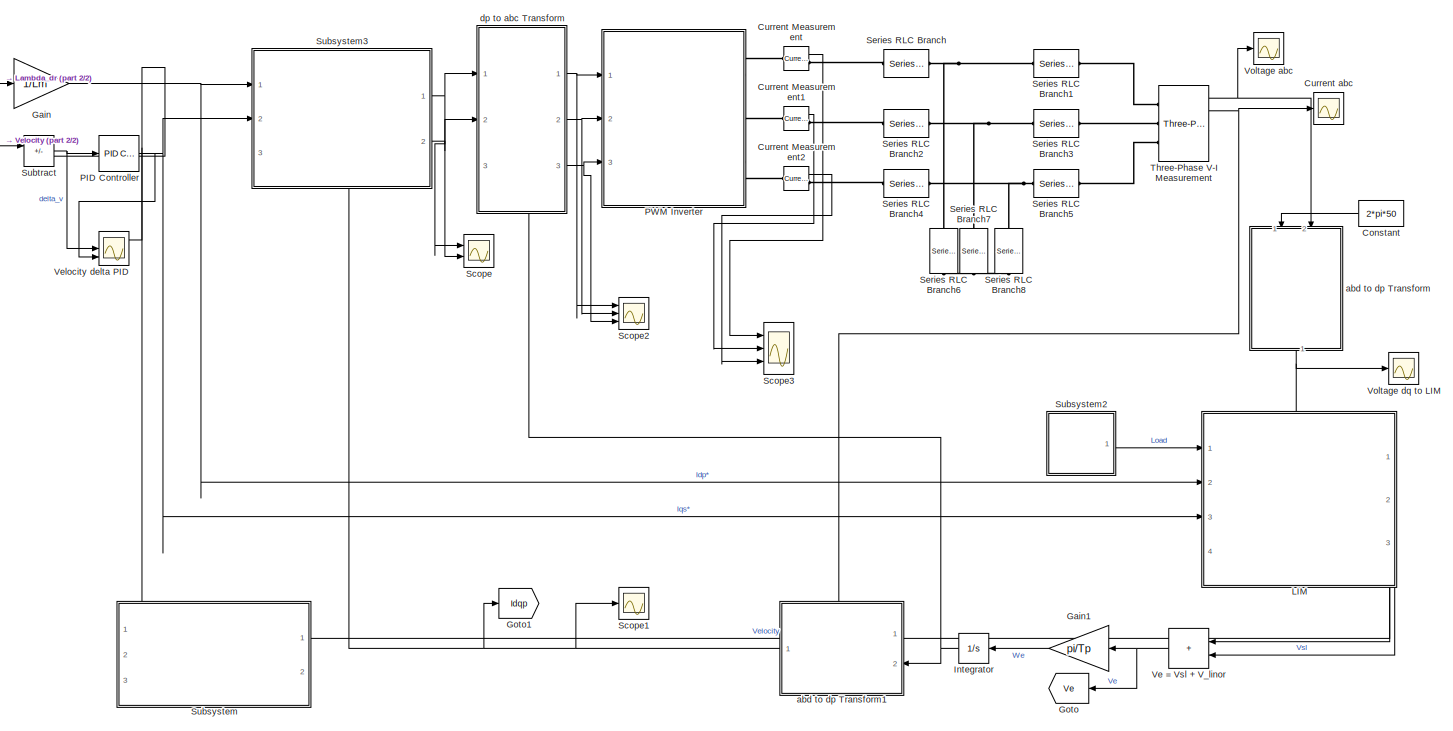
[diagram: root canvas - part 1/2, most of the canvas]
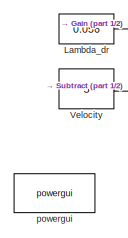
[diagram: root canvas - part 2/2, top left region]
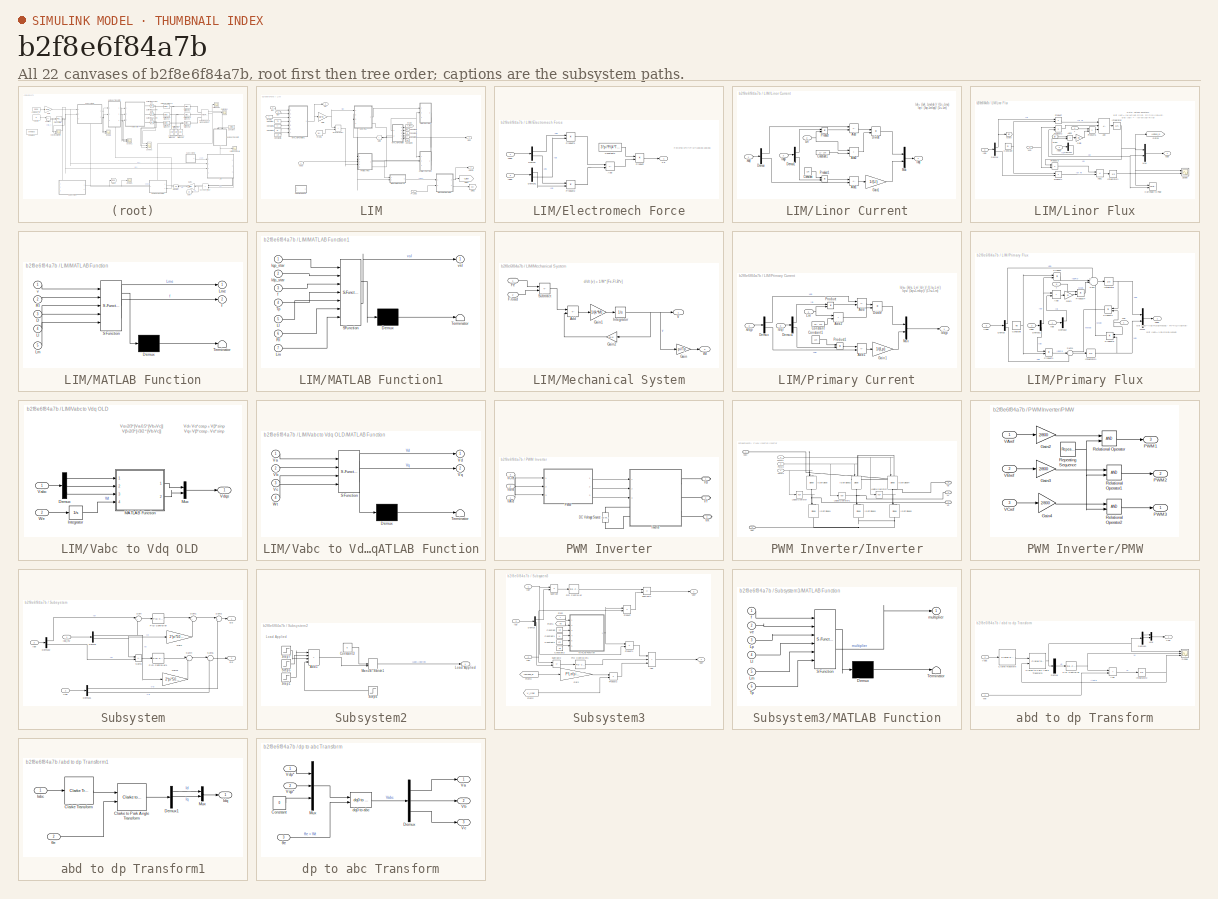
[diagram: thumbnail index - all 22 canvases of the model, root first then tree order]
MODEL slx_b2f8e6f84a7b
KIND model
CONFIG AbsTol = auto
CONFIG EnableMultiTasking = off
CONFIG FixedStep = auto
CONFIG MaxStep = auto
CONFIG MinStep = auto
CONFIG RelTol = 1e-3
CONFIG SampleTimeConstraint = Unconstrained
CONFIG SolverName = ode23t
CONFIG StartTime = 0.0
CONFIG StopTime = 2
BLOCK [Constant] Constant
  NameLocation = top
  Value = 2*pi*50
BLOCK [Reference] Current Measurement  REF=spsCurrentMeasurementLib/Current Measurement
  Ports = [0, 1, 0, 0, 0, 1, 1]
  SourceBlock = spsCurrentMeasurementLib/Current Measurement
  SourceProductBaseCode = PS
  SourceType = Current Measurement
  UserDataPersistent = on
BLOCK [Reference] Current Measurement1  REF=spsCurrentMeasurementLib/Current Measurement
  Ports = [0, 1, 0, 0, 0, 1, 1]
  SourceBlock = spsCurrentMeasurementLib/Current Measurement
  SourceProductBaseCode = PS
  SourceType = Current Measurement
  UserDataPersistent = on
BLOCK [Reference] Current Measurement2  REF=spsCurrentMeasurementLib/Current Measurement
  Ports = [0, 1, 0, 0, 0, 1, 1]
  SourceBlock = spsCurrentMeasurementLib/Current Measurement
  SourceProductBaseCode = PS
  SourceType = Current Measurement
  UserDataPersistent = on
BLOCK [Scope] Current abc
  Floating = off
  NumInputPorts = 1
  Ports = [1]
  ScopeSpecificationString = Simulink.scopes.TimeScopeBlockCfg('CurrentConfiguration', extmgr.ConfigurationSet(extmgr.Configuration('Core','General UI',true),extmgr.Configuration('Core','Source UI',true),extmgr.Configuration('Sources','WiredSimulink',true,'DataLoggingVariableName','ScopeData3'),extmgr.Configuration('Visuals','Time Domain',true,'SerializedDisplays',{struct('MinYLimReal','-1.00000','MaxYLimReal','1.00000','YLab...<+2809ch>
BLOCK [Gain] Gain
  Gain = 1/Lm
BLOCK [Gain] Gain1
  Gain = pi/Tp
BLOCK [Goto] Goto
  GotoTag = Ve
  NameLocation = top
  TagVisibility = global
BLOCK [Goto] Goto1
  GotoTag = Idqp
  TagVisibility = global
BLOCK [Integrator] Integrator
  NameLocation = top
  Ports = [1, 1]
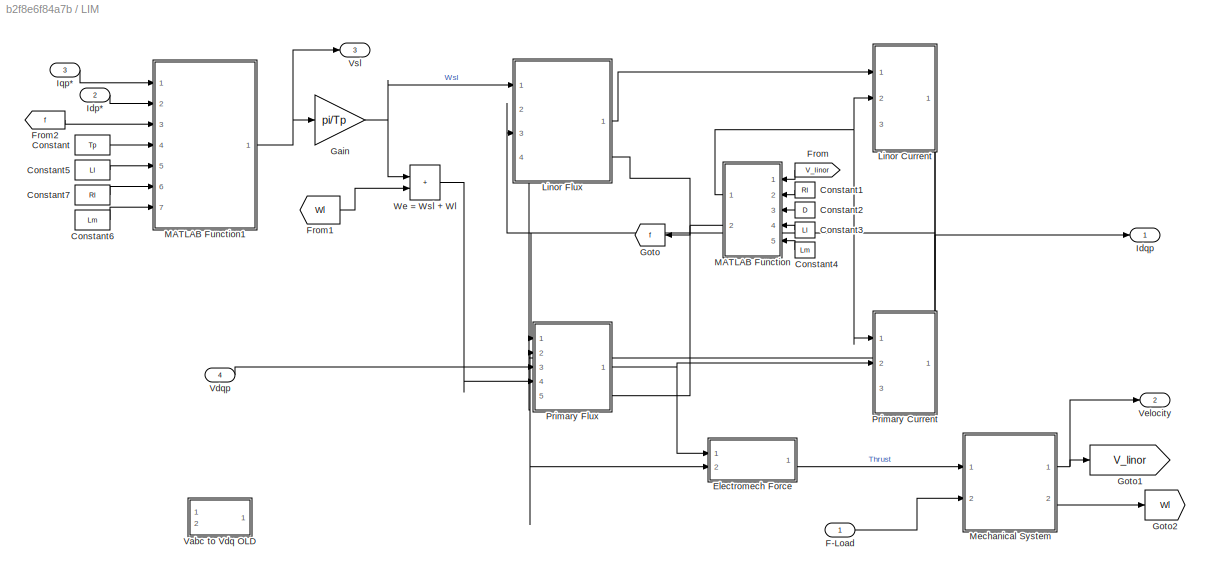
BLOCK [SubSystem] LIM
  PortSchema = {"entries":[{"content":{"sides":[{"content":{"connectorIds":["In1","In2","In3"]},"type":"ConnectorPlacement.EquallySpacedRectSide","uuid":"f7446374-ee35-46fe-93ed-7921b6b2af41"},{"content":{"connectorIds":["Out1"],"side":"RIGHT"},"type":"ConnectorPlacement.EquallySpacedRectSide","uuid":"9c6022f9-7a1a-4d7e-a6a7-0d40c632aa44"},{"content":{"connectorIds":["In4"],"side":"TOP"},"type":"ConnectorPlaceme...<+414ch>
  Ports = [4, 3]
  RequestExecContextInheritance = off
BLOCK [Constant] LIM/Constant
  Value = Tp
BLOCK [Constant] LIM/Constant1
  NameLocation = top
  Value = Rl
BLOCK [Constant] LIM/Constant2
  NameLocation = top
  Value = D
BLOCK [Constant] LIM/Constant3
  NameLocation = top
  Value = Ll
BLOCK [Constant] LIM/Constant4
  NameLocation = top
  Value = Lm
BLOCK [Constant] LIM/Constant5
  Value = Ll
BLOCK [Constant] LIM/Constant6
  Value = Lm
BLOCK [Constant] LIM/Constant7
  Value = Rl
BLOCK [SubSystem] LIM/Electromech Force
  Ports = [2, 1]
  RequestExecContextInheritance = off
BLOCK [Sum] LIM/Electromech Force/Add
  IconShape = rectangular
  Inputs = +-
  Ports = [2, 1]
BLOCK [Constant] LIM/Electromech Force/Constant2
  Value = 3*pi*P/(4*Tp)
BLOCK [Demux] LIM/Electromech Force/Demux
  Outputs = 2
  Ports = [1, 2]
BLOCK [Demux] LIM/Electromech Force/Demux1
  Outputs = 2
  Ports = [1, 2]
BLOCK [Outport] LIM/Electromech Force/Fe
BLOCK [Inport] LIM/Electromech Force/Idqp
  Port = 2
BLOCK [Product] LIM/Electromech Force/Product
  Ports = [2, 1]
BLOCK [Product] LIM/Electromech Force/Product1
  Ports = [2, 1]
BLOCK [Product] LIM/Electromech Force/Product2
  Ports = [2, 1]
BLOCK [Inport] LIM/Electromech Force/λdqp
BLOCK [Inport] LIM/F-Load
BLOCK [From] LIM/From
  GotoTag = V_linor
  NameLocation = top
  TagVisibility = global
BLOCK [From] LIM/From1
  GotoTag = Wl
BLOCK [From] LIM/From2
  GotoTag = f
  TagVisibility = global
BLOCK [Gain] LIM/Gain
  Gain = pi/Tp
BLOCK [Goto] LIM/Goto
  GotoTag = f
  NameLocation = top
  TagVisibility = global
BLOCK [Goto] LIM/Goto1
  GotoTag = V_linor
  TagVisibility = global
BLOCK [Goto] LIM/Goto2
  GotoTag = Wl
BLOCK [Inport] LIM/Idp*
  Port = 2
BLOCK [Outport] LIM/Idqp
BLOCK [Inport] LIM/Iqp*
  Port = 3
BLOCK [SubSystem] LIM/Linor Current
  NameLocation = top
  PortSchema = {"entries":[{"content":{"sides":[{"content":{"connectorIds":["In1","In2"]},"type":"ConnectorPlacement.EquallySpacedRectSide","uuid":"40d9865c-3cfa-44c1-93eb-682b1c6628f3"},{"content":{"connectorIds":[],"side":"RIGHT"},"type":"ConnectorPlacement.EquallySpacedRectSide","uuid":"35710d59-e170-4e3b-9d71-9b17ce19d5d9"},{"content":{"connectorIds":[],"side":"TOP"},"type":"ConnectorPlacement.EquallySpacedR...<+396ch>
  Ports = [3, 1]
  RequestExecContextInheritance = off
BLOCK [Sum] LIM/Linor Current/Add
  IconShape = rectangular
  Inputs = +-
  Ports = [2, 1]
BLOCK [Sum] LIM/Linor Current/Add1
  IconShape = rectangular
  Inputs = -+
  Ports = [2, 1]
BLOCK [Sum] LIM/Linor Current/Add2
  IconShape = rectangular
  Ports = [2, 1]
BLOCK [Constant] LIM/Linor Current/Constant
  Value = Lm
  VectorParams1D = off
BLOCK [Constant] LIM/Linor Current/Constant1
  Value = Ll - Lm
BLOCK [Demux] LIM/Linor Current/Demux
  Outputs = 2
  Ports = [1, 2]
BLOCK [Demux] LIM/Linor Current/Demux1
  Outputs = 2
  Ports = [1, 2]
BLOCK [Product] LIM/Linor Current/Divide
  Inputs = */
  Ports = [2, 1]
BLOCK [Gain] LIM/Linor Current/Gain1
  Gain = 1/(Ll)
BLOCK [Outport] LIM/Linor Current/Idql
BLOCK [Inport] LIM/Linor Current/Idqp
  Port = 3
BLOCK [Inport] LIM/Linor Current/Lm'
  Port = 2
BLOCK [Mux] LIM/Linor Current/Mux
  DisplayOption = bar
  Inputs = 2
  Ports = [2, 1]
BLOCK [Product] LIM/Linor Current/Product
  Ports = [2, 1]
BLOCK [Product] LIM/Linor Current/Product1
  Ports = [2, 1]
BLOCK [Inport] LIM/Linor Current/λdql
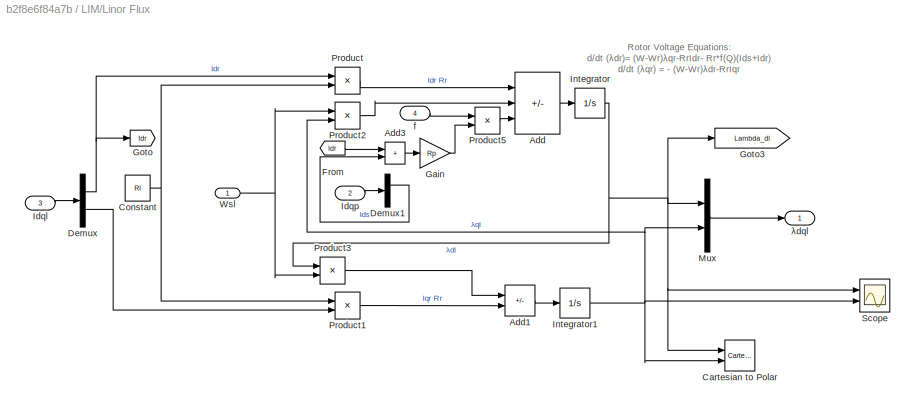
BLOCK [SubSystem] LIM/Linor Flux
  PortSchema = {"entries":[{"content":{"sides":[{"content":{"connectorIds":["In1","In2","In3"]},"type":"ConnectorPlacement.EquallySpacedRectSide","uuid":"b9a9f404-9b3b-4182-a50e-1bf7cef191e8"},{"content":{"connectorIds":["Out1","In4"],"side":"RIGHT"},"type":"ConnectorPlacement.EquallySpacedRectSide","uuid":"68159d79-7975-4fd0-98a3-7e35432781a2"},{"content":{"connectorIds":[],"side":"TOP"},"type":"ConnectorPlacem...<+402ch>
  Ports = [4, 1]
  RequestExecContextInheritance = off
BLOCK [Sum] LIM/Linor Flux/Add
  IconShape = rectangular
  Inputs = -+-
  Ports = [3, 1]
BLOCK [Sum] LIM/Linor Flux/Add1
  IconShape = rectangular
  Inputs = --
  Ports = [2, 1]
BLOCK [Sum] LIM/Linor Flux/Add3
  IconShape = rectangular
  Ports = [2, 1]
BLOCK [Reference] LIM/Linor Flux/Cartesian to Polar  REF=simulink_extras/Transformations/Cartesian to
Polar
  Commented = on
  Ports = [2, 2]
  SourceBlock = simulink_extras/Transformations/Cartesian to\nPolar
  SourceProductBaseCode = SL
  SourceType = Cart2Polar
BLOCK [Constant] LIM/Linor Flux/Constant
  Value = Rl
BLOCK [Demux] LIM/Linor Flux/Demux
  Outputs = 2
  Ports = [1, 2]
BLOCK [Demux] LIM/Linor Flux/Demux1
  Outputs = 2
  Ports = [1, 2]
BLOCK [From] LIM/Linor Flux/From
  GotoTag = Idr
BLOCK [Gain] LIM/Linor Flux/Gain
  Gain = Rp
BLOCK [Goto] LIM/Linor Flux/Goto
  GotoTag = Idr
BLOCK [Goto] LIM/Linor Flux/Goto3
  GotoTag = Lambda_dl
  TagVisibility = global
BLOCK [Inport] LIM/Linor Flux/Idql
  Port = 3
BLOCK [Inport] LIM/Linor Flux/Idqp
  Port = 2
BLOCK [Integrator] LIM/Linor Flux/Integrator
  Ports = [1, 1]
BLOCK [Integrator] LIM/Linor Flux/Integrator1
  Ports = [1, 1]
BLOCK [Mux] LIM/Linor Flux/Mux
  DisplayOption = bar
  Inputs = 2
  Ports = [2, 1]
BLOCK [Product] LIM/Linor Flux/Product
  Ports = [2, 1]
BLOCK [Product] LIM/Linor Flux/Product1
  Ports = [2, 1]
BLOCK [Product] LIM/Linor Flux/Product2
  Ports = [2, 1]
BLOCK [Product] LIM/Linor Flux/Product3
  Ports = [2, 1]
BLOCK [Product] LIM/Linor Flux/Product5
  Ports = [2, 1]
BLOCK [Scope] LIM/Linor Flux/Scope
  Floating = off
  NumInputPorts = 2
  Ports = [2]
  ScopeSpecificationString = Simulink.scopes.TimeScopeBlockCfg('CurrentConfiguration', extmgr.ConfigurationSet(extmgr.Configuration('Core','General UI',true),extmgr.Configuration('Core','Source UI',true),extmgr.Configuration('Sources','WiredSimulink',true,'DataLoggingVariableName','ScopeData1'),extmgr.Configuration('Visuals','Time Domain',true,'SerializedDisplays',{struct('MinYLimReal','-1.28219','MaxYLimReal','1.45674','YLab...<+2050ch>
BLOCK [Inport] LIM/Linor Flux/Wsl
BLOCK [Inport] LIM/Linor Flux/f
  Port = 4
BLOCK [Outport] LIM/Linor Flux/λdql
BLOCK [SubSystem] LIM/MATLAB Function
  ErrorFcn = Stateflow.Translate.translate
  NameLocation = top
  PermitHierarchicalResolution = ExplicitOnly
  Ports = [5, 2]
  RequestExecContextInheritance = off
  SFBlockType = MATLAB Function
  TreatAsAtomicUnit = on
BLOCK [Demux] LIM/MATLAB Function/ Demux 
  Outputs = 1
  Ports = [1, 1]
BLOCK [S-Function] LIM/MATLAB Function/ SFunction 
  EnableBusSupport = on
  FunctionName = sf_sfun
  PortCounts = [5 3]
  Ports = [5, 3]
  SFcnIsStateOwnerBlock = off
  SFunctionDeploymentMode = off
  Tag = Stateflow S-Function 2
BLOCK [Terminator] LIM/MATLAB Function/ Terminator 
BLOCK [Inport] LIM/MATLAB Function/D
  Port = 3
BLOCK [Inport] LIM/MATLAB Function/Ll
  Port = 4
BLOCK [Inport] LIM/MATLAB Function/Lm
  Port = 5
BLOCK [Outport] LIM/MATLAB Function/Lme
BLOCK [Inport] LIM/MATLAB Function/Rl
  Port = 2
BLOCK [Outport] LIM/MATLAB Function/f
  Port = 2
BLOCK [Inport] LIM/MATLAB Function/v
BLOCK [SubSystem] LIM/MATLAB Function1
  ErrorFcn = Stateflow.Translate.translate
  PermitHierarchicalResolution = ExplicitOnly
  Ports = [7, 1]
  RequestExecContextInheritance = off
  SFBlockType = MATLAB Function
  TreatAsAtomicUnit = on
BLOCK [Demux] LIM/MATLAB Function1/ Demux 
  Outputs = 1
  Ports = [1, 1]
BLOCK [S-Function] LIM/MATLAB Function1/ SFunction 
  EnableBusSupport = on
  FunctionName = sf_sfun
  PortCounts = [7 2]
  Ports = [7, 2]
  SFcnIsStateOwnerBlock = off
  SFunctionDeploymentMode = off
  Tag = Stateflow S-Function 3
BLOCK [Terminator] LIM/MATLAB Function1/ Terminator 
BLOCK [Inport] LIM/MATLAB Function1/Idp_star
  Port = 2
BLOCK [Inport] LIM/MATLAB Function1/Iqp_star
BLOCK [Inport] LIM/MATLAB Function1/Ll
  Port = 5
BLOCK [Inport] LIM/MATLAB Function1/Lm
  Port = 7
BLOCK [Inport] LIM/MATLAB Function1/Rl
  Port = 6
BLOCK [Inport] LIM/MATLAB Function1/Tp
  Port = 4
BLOCK [Inport] LIM/MATLAB Function1/f
  Port = 3
BLOCK [Outport] LIM/MATLAB Function1/vsl
BLOCK [SubSystem] LIM/Mechanical System
  Ports = [2, 2]
  RequestExecContextInheritance = off
BLOCK [Sum] LIM/Mechanical System/Add
  IconShape = rectangular
  Inputs = +-
  Ports = [2, 1]
BLOCK [Inport] LIM/Mechanical System/F-load
  Port = 2
BLOCK [Inport] LIM/Mechanical System/Fe
BLOCK [Gain] LIM/Mechanical System/Gain
  Gain = pi/Tp
BLOCK [Gain] LIM/Mechanical System/Gain1
  Gain = 1/(k*M)
BLOCK [Gain] LIM/Mechanical System/Gain2
  Gain = B*k
  NameLocation = top
BLOCK [Integrator] LIM/Mechanical System/Integrator
  Ports = [1, 1]
BLOCK [Sum] LIM/Mechanical System/Subtract
  IconShape = rectangular
  Inputs = +-
  Ports = [2, 1]
BLOCK [Outport] LIM/Mechanical System/V
BLOCK [Outport] LIM/Mechanical System/Wl
  Port = 2
BLOCK [SubSystem] LIM/Primary Current
  PortSchema = {"entries":[{"content":{"sides":[{"content":{"connectorIds":["In1","In2"]},"type":"ConnectorPlacement.EquallySpacedRectSide","uuid":"40d9865c-3cfa-44c1-93eb-682b1c6628f3"},{"content":{"connectorIds":[],"side":"RIGHT"},"type":"ConnectorPlacement.EquallySpacedRectSide","uuid":"35710d59-e170-4e3b-9d71-9b17ce19d5d9"},{"content":{"connectorIds":["Out1","In3"],"side":"TOP"},"type":"ConnectorPlacement.Eq...<+252ch>
  Ports = [3, 1]
  RequestExecContextInheritance = off
BLOCK [Sum] LIM/Primary Current/Add
  IconShape = rectangular
  Inputs = +-
  Ports = [2, 1]
BLOCK [Sum] LIM/Primary Current/Add1
  IconShape = rectangular
  Inputs = -+
  Ports = [2, 1]
BLOCK [Sum] LIM/Primary Current/Add2
  IconShape = rectangular
  Ports = [2, 1]
BLOCK [Constant] LIM/Primary Current/Constant
  Value = Lp - Lm
BLOCK [Constant] LIM/Primary Current/Constant1
  Value = Lm
  VectorParams1D = off
BLOCK [Demux] LIM/Primary Current/Demux
  Outputs = 2
  Ports = [1, 2]
BLOCK [Demux] LIM/Primary Current/Demux1
  Outputs = 2
  Ports = [1, 2]
BLOCK [Product] LIM/Primary Current/Divide
  Inputs = */
  Ports = [2, 1]
BLOCK [Gain] LIM/Primary Current/Gain1
  Gain = 1/(Lp)
BLOCK [Inport] LIM/Primary Current/Idql
  Port = 3
BLOCK [Outport] LIM/Primary Current/Idqp
BLOCK [Inport] LIM/Primary Current/Lm'
BLOCK [Mux] LIM/Primary Current/Mux
  DisplayOption = bar
  Inputs = 2
  Ports = [2, 1]
BLOCK [Product] LIM/Primary Current/Product
  Ports = [2, 1]
BLOCK [Product] LIM/Primary Current/Product1
  Ports = [2, 1]
BLOCK [Inport] LIM/Primary Current/λdqp
  Port = 2
BLOCK [SubSystem] LIM/Primary Flux
  PortSchema = {"entries":[{"content":{"sides":[{"content":{"connectorIds":["In1","In2","In3","In4"]},"type":"ConnectorPlacement.EquallySpacedRectSide","uuid":"a4b29cca-9cb0-4324-9244-2049ffc93668"},{"content":{"connectorIds":["In5","Out1"],"side":"RIGHT"},"type":"ConnectorPlacement.EquallySpacedRectSide","uuid":"b20ff3ac-d40e-4f59-bb91-f6f2c0c6ca63"},{"content":{"connectorIds":[],"side":"TOP"},"type":"Connector...<+408ch>
  Ports = [5, 1]
  RequestExecContextInheritance = off
BLOCK [Sum] LIM/Primary Flux/Add
  IconShape = rectangular
  Ports = [2, 1]
BLOCK [Constant] LIM/Primary Flux/Constant
  Value = Rp
BLOCK [Demux] LIM/Primary Flux/Demux
  Outputs = 2
  Ports = [1, 2]
BLOCK [Demux] LIM/Primary Flux/Demux1
  Outputs = 2
  Ports = [1, 2]
BLOCK [Demux] LIM/Primary Flux/Demux2
  Outputs = 2
  Ports = [1, 2]
BLOCK [Gain] LIM/Primary Flux/Gain
  Gain = Rl
BLOCK [Inport] LIM/Primary Flux/Idql
BLOCK [Inport] LIM/Primary Flux/Idqp
  Port = 2
BLOCK [Integrator] LIM/Primary Flux/Integrator
  Ports = [1, 1]
BLOCK [Integrator] LIM/Primary Flux/Integrator1
  Ports = [1, 1]
BLOCK [Mux] LIM/Primary Flux/Mux1
  DisplayOption = bar
  Inputs = 2
  Ports = [2, 1]
BLOCK [Product] LIM/Primary Flux/Product
  Ports = [2, 1]
BLOCK [Product] LIM/Primary Flux/Product1
  Ports = [2, 1]
BLOCK [Product] LIM/Primary Flux/Product2
  NameLocation = top
  Ports = [2, 1]
BLOCK [Product] LIM/Primary Flux/Product3
  NameLocation = top
  Ports = [2, 1]
BLOCK [Product] LIM/Primary Flux/Product4
  Ports = [2, 1]
BLOCK [Sum] LIM/Primary Flux/Sum
  Inputs = +--+
  Ports = [4, 1]
BLOCK [Sum] LIM/Primary Flux/Sum1
  Inputs = --+
  Ports = [3, 1]
BLOCK [Inport] LIM/Primary Flux/Vdqp
  Port = 3
BLOCK [Inport] LIM/Primary Flux/We
  NameLocation = top
  Port = 4
BLOCK [Inport] LIM/Primary Flux/f
  Port = 5
BLOCK [Outport] LIM/Primary Flux/λdqs
BLOCK [SubSystem] LIM/Vabc to Vdq OLD 
  Commented = on
  Ports = [2, 1]
  RequestExecContextInheritance = off
BLOCK [Demux] LIM/Vabc to Vdq OLD /Demux
  Outputs = 3
  Ports = [1, 3]
BLOCK [Integrator] LIM/Vabc to Vdq OLD /Integrator
  Ports = [1, 1]
BLOCK [SubSystem] LIM/Vabc to Vdq OLD /MATLAB Function
  ErrorFcn = Stateflow.Translate.translate
  PermitHierarchicalResolution = ExplicitOnly
  Ports = [4, 2]
  RequestExecContextInheritance = off
  SFBlockType = MATLAB Function
  TreatAsAtomicUnit = on
BLOCK [Demux] LIM/Vabc to Vdq OLD /MATLAB Function/ Demux 
  Outputs = 1
  Ports = [1, 1]
BLOCK [S-Function] LIM/Vabc to Vdq OLD /MATLAB Function/ SFunction 
  EnableBusSupport = on
  FunctionName = sf_sfun
  PortCounts = [4 3]
  Ports = [4, 3]
  SFcnIsStateOwnerBlock = off
  SFunctionDeploymentMode = off
  Tag = Stateflow S-Function 1
BLOCK [Terminator] LIM/Vabc to Vdq OLD /MATLAB Function/ Terminator 
BLOCK [Inport] LIM/Vabc to Vdq OLD /MATLAB Function/Va
BLOCK [Inport] LIM/Vabc to Vdq OLD /MATLAB Function/Vb
  Port = 2
BLOCK [Inport] LIM/Vabc to Vdq OLD /MATLAB Function/Vc
  Port = 3
BLOCK [Outport] LIM/Vabc to Vdq OLD /MATLAB Function/Vd
BLOCK [Outport] LIM/Vabc to Vdq OLD /MATLAB Function/Vq
  Port = 2
BLOCK [Inport] LIM/Vabc to Vdq OLD /MATLAB Function/Wt
  Port = 4
BLOCK [Mux] LIM/Vabc to Vdq OLD /Mux
  DisplayOption = bar
  Inputs = 2
  Ports = [2, 1]
BLOCK [Inport] LIM/Vabc to Vdq OLD /Vabc
BLOCK [Outport] LIM/Vabc to Vdq OLD /Vdqs
BLOCK [Inport] LIM/Vabc to Vdq OLD /We
  Port = 2
BLOCK [Inport] LIM/Vdqp
  Port = 4
BLOCK [Outport] LIM/Velocity
  Port = 2
BLOCK [Outport] LIM/Vsl
  Port = 3
BLOCK [Sum] LIM/We = Wsl + Wl
  IconShape = rectangular
  Ports = [2, 1]
BLOCK [Constant] Lambda_dr
  Value = 0.056
BLOCK [Reference] PID Controller  REF=pid_lib/PID Controller
  Ports = [1, 1]
  SourceBlock = pid_lib/PID Controller
  SourceProductBaseCode = SL
  SourceType = PID 1dof
BLOCK [SubSystem] PWM Inverter
  Ports = [3, 0, 0, 0, 0, 0, 3]
  RequestExecContextInheritance = off
BLOCK [Reference] PWM Inverter/DC Voltage Source   REF=spsDCVoltageSourceLib/DC Voltage Source
  Ports = [0, 0, 0, 0, 0, 1, 1]
  SourceBlock = spsDCVoltageSourceLib/DC Voltage Source
  SourceProductBaseCode = PS
  SourceType = DC Voltage Source
BLOCK [SubSystem] PWM Inverter/Inverter
  Ports = [3, 0, 0, 0, 0, 2, 3]
  RequestExecContextInheritance = off
BLOCK [Reference] PWM Inverter/Inverter/IGBT//Diode  REF=spsIGBTDiodeLib/IGBT//Diode
  NameLocation = left
  Ports = [1, 0, 0, 0, 0, 1, 1]
  SourceBlock = spsIGBTDiodeLib/IGBT//Diode
  SourceProductBaseCode = PS
  SourceType = IGBT/Diode
BLOCK [Reference] PWM Inverter/Inverter/IGBT//Diode1  REF=spsIGBTDiodeLib/IGBT//Diode
  NameLocation = left
  Ports = [1, 0, 0, 0, 0, 1, 1]
  SourceBlock = spsIGBTDiodeLib/IGBT//Diode
  SourceProductBaseCode = PS
  SourceType = IGBT/Diode
BLOCK [Reference] PWM Inverter/Inverter/IGBT//Diode2  REF=spsIGBTDiodeLib/IGBT//Diode
  NameLocation = left
  Ports = [1, 0, 0, 0, 0, 1, 1]
  SourceBlock = spsIGBTDiodeLib/IGBT//Diode
  SourceProductBaseCode = PS
  SourceType = IGBT/Diode
BLOCK [Reference] PWM Inverter/Inverter/IGBT//Diode3  REF=spsIGBTDiodeLib/IGBT//Diode
  NameLocation = left
  Ports = [1, 0, 0, 0, 0, 1, 1]
  SourceBlock = spsIGBTDiodeLib/IGBT//Diode
  SourceProductBaseCode = PS
  SourceType = IGBT/Diode
BLOCK [Reference] PWM Inverter/Inverter/IGBT//Diode4  REF=spsIGBTDiodeLib/IGBT//Diode
  NameLocation = left
  Ports = [1, 0, 0, 0, 0, 1, 1]
  SourceBlock = spsIGBTDiodeLib/IGBT//Diode
  SourceProductBaseCode = PS
  SourceType = IGBT/Diode
BLOCK [Reference] PWM Inverter/Inverter/IGBT//Diode5  REF=spsIGBTDiodeLib/IGBT//Diode
  NameLocation = left
  Ports = [1, 0, 0, 0, 0, 1, 1]
  SourceBlock = spsIGBTDiodeLib/IGBT//Diode
  SourceProductBaseCode = PS
  SourceType = IGBT/Diode
BLOCK [Logic] PWM Inverter/Inverter/Logical Operator
  AllPortsSameDT = off
  Operator = NOT
  OutDataTypeStr = boolean
  Ports = [1, 1]
BLOCK [Logic] PWM Inverter/Inverter/Logical Operator1
  AllPortsSameDT = off
  Operator = NOT
  OutDataTypeStr = boolean
  Ports = [1, 1]
BLOCK [Logic] PWM Inverter/Inverter/Logical Operator2
  AllPortsSameDT = off
  Operator = NOT
  OutDataTypeStr = boolean
  Ports = [1, 1]
BLOCK [Inport] PWM Inverter/Inverter/PWM1
BLOCK [Inport] PWM Inverter/Inverter/PWM2
  Port = 2
BLOCK [Inport] PWM Inverter/Inverter/PWM3
  Port = 3
BLOCK [PMIOPort] PWM Inverter/Inverter/VB
  NameLocation = top
  Port = 3
  Side = Right
BLOCK [PMIOPort] PWM Inverter/Inverter/VDC+
  Side = Left
BLOCK [PMIOPort] PWM Inverter/Inverter/VDC-
  Port = 2
  Side = Left
BLOCK [PMIOPort] PWM Inverter/Inverter/VR
  NameLocation = top
  Port = 5
  Side = Right
BLOCK [PMIOPort] PWM Inverter/Inverter/VY
  NameLocation = top
  Port = 4
  Side = Right
BLOCK [SubSystem] PWM Inverter/PMW
  NameLocation = top
  PortSchema = {"entries":[{"content":{"sides":[{"content":{"connectorIds":["Out1","Out2","Out3"]},"type":"ConnectorPlacement.EquallySpacedRectSide","uuid":"fa5038a1-afc0-4dd0-b72d-009c2412aee1"},{"content":{"connectorIds":["In1","In2","In3"],"side":"RIGHT"},"type":"ConnectorPlacement.EquallySpacedRectSide","uuid":"b873ef02-5cf0-4d47-90da-8e56690c29fa"},{"content":{"connectorIds":[],"side":"TOP"},"type":"Connect...<+266ch>
  Ports = [3, 3]
  RequestExecContextInheritance = off
BLOCK [Gain] PWM Inverter/PMW/Gain2
  Gain = 2/800
BLOCK [Gain] PWM Inverter/PMW/Gain3
  Gain = 2/800
BLOCK [Gain] PWM Inverter/PMW/Gain4
  Gain = 2/800
BLOCK [Outport] PWM Inverter/PMW/PWM1
  Port = 3
BLOCK [Outport] PWM Inverter/PMW/PWM2
  Port = 2
BLOCK [Outport] PWM Inverter/PMW/PWM3
BLOCK [RelationalOperator] PWM Inverter/PMW/Relational Operator
  InputSameDT = off
  OutDataTypeStr = boolean
  Ports = [2, 1]
  RndMeth = Simplest
BLOCK [RelationalOperator] PWM Inverter/PMW/Relational Operator1
  InputSameDT = off
  OutDataTypeStr = boolean
  Ports = [2, 1]
  RndMeth = Simplest
BLOCK [RelationalOperator] PWM Inverter/PMW/Relational Operator2
  InputSameDT = off
  OutDataTypeStr = boolean
  Ports = [2, 1]
  RndMeth = Simplest
BLOCK [Reference] PWM Inverter/PMW/Repeating Sequence  REF=simulink/Sources/Repeating
Sequence
  Ports = [0, 1]
  SourceBlock = simulink/Sources/Repeating\nSequence
  SourceProductBaseCode = SL
  SourceType = Repeating table
BLOCK [Inport] PWM Inverter/PMW/VAref
BLOCK [Inport] PWM Inverter/PMW/VBref
  Port = 2
BLOCK [Inport] PWM Inverter/PMW/VCref
  Port = 3
BLOCK [Inport] PWM Inverter/VAref
BLOCK [PMIOPort] PWM Inverter/VB
  Side = Right
BLOCK [Inport] PWM Inverter/VBref
  Port = 2
BLOCK [Inport] PWM Inverter/VCref
  Port = 3
BLOCK [PMIOPort] PWM Inverter/VR
  Port = 3
  Side = Right
BLOCK [PMIOPort] PWM Inverter/VY
  Port = 2
  Side = Right
BLOCK [Scope] Scope
  Floating = off
  NumInputPorts = 2
  Ports = [2]
  ScopeSpecificationString = Simulink.scopes.TimeScopeBlockCfg('CurrentConfiguration', extmgr.ConfigurationSet(extmgr.Configuration('Core','General UI',true),extmgr.Configuration('Core','Source UI',true),extmgr.Configuration('Sources','WiredSimulink',true,'DataLoggingVariableName','ScopeData1'),extmgr.Configuration('Visuals','Time Domain',true,'SerializedDisplays',{struct('MinYLimReal','-11542480.55222','MaxYLimReal','1444165...<+1467ch>
BLOCK [Scope] Scope1
  Floating = off
  NumInputPorts = 1
  Ports = [1]
  ScopeSpecificationString = Simulink.scopes.TimeScopeBlockCfg('CurrentConfiguration', extmgr.ConfigurationSet(extmgr.Configuration('Core','General UI',true),extmgr.Configuration('Core','Source UI',true),extmgr.Configuration('Sources','WiredSimulink',true,'DataLoggingVariableName','ScopeData2'),extmgr.Configuration('Visuals','Time Domain',true,'SerializedDisplays',{struct('MinYLimReal','-1158.91303','MaxYLimReal','1158.9036',...<+1426ch>
BLOCK [Scope] Scope2
  Floating = off
  NumInputPorts = 3
  Ports = [3]
  ScopeSpecificationString = Simulink.scopes.TimeScopeBlockCfg('CurrentConfiguration', extmgr.ConfigurationSet(extmgr.Configuration('Core','General UI',true),extmgr.Configuration('Core','Source UI',true),extmgr.Configuration('Sources','WiredSimulink',true,'DataLoggingVariableName','ScopeData2'),extmgr.Configuration('Visuals','Time Domain',true,'SerializedDisplays',{struct('MinYLimReal','-12803041.594','MaxYLimReal','12812303....<+2802ch>
BLOCK [Scope] Scope3
  Floating = off
  NumInputPorts = 3
  Ports = [3]
  ScopeSpecificationString = Simulink.scopes.TimeScopeBlockCfg('CurrentConfiguration', extmgr.ConfigurationSet(extmgr.Configuration('Core','General UI',true),extmgr.Configuration('Core','Source UI',true),extmgr.Configuration('Sources','WiredSimulink',true,'DataLoggingVariableName','ScopeData2'),extmgr.Configuration('Visuals','Time Domain',true,'SerializedDisplays',{struct('MinYLimReal','-2837.97435','MaxYLimReal','2886.81385'...<+2740ch>
BLOCK [Reference] Series RLC Branch  REF=spsSeriesRLCBranchLib/Series RLC Branch
  Ports = [0, 0, 0, 0, 0, 1, 1]
  SourceBlock = spsSeriesRLCBranchLib/Series RLC Branch
  SourceProductBaseCode = PS
  SourceType = Series RLC Branch
BLOCK [Reference] Series RLC Branch1  REF=spsSeriesRLCBranchLib/Series RLC Branch
  Ports = [0, 0, 0, 0, 0, 1, 1]
  SourceBlock = spsSeriesRLCBranchLib/Series RLC Branch
  SourceProductBaseCode = PS
  SourceType = Series RLC Branch
BLOCK [Reference] Series RLC Branch2  REF=spsSeriesRLCBranchLib/Series RLC Branch
  Ports = [0, 0, 0, 0, 0, 1, 1]
  SourceBlock = spsSeriesRLCBranchLib/Series RLC Branch
  SourceProductBaseCode = PS
  SourceType = Series RLC Branch
BLOCK [Reference] Series RLC Branch3  REF=spsSeriesRLCBranchLib/Series RLC Branch
  Ports = [0, 0, 0, 0, 0, 1, 1]
  SourceBlock = spsSeriesRLCBranchLib/Series RLC Branch
  SourceProductBaseCode = PS
  SourceType = Series RLC Branch
BLOCK [Reference] Series RLC Branch4  REF=spsSeriesRLCBranchLib/Series RLC Branch
  Ports = [0, 0, 0, 0, 0, 1, 1]
  SourceBlock = spsSeriesRLCBranchLib/Series RLC Branch
  SourceProductBaseCode = PS
  SourceType = Series RLC Branch
BLOCK [Reference] Series RLC Branch5  REF=spsSeriesRLCBranchLib/Series RLC Branch
  Ports = [0, 0, 0, 0, 0, 1, 1]
  SourceBlock = spsSeriesRLCBranchLib/Series RLC Branch
  SourceProductBaseCode = PS
  SourceType = Series RLC Branch
BLOCK [Reference] Series RLC Branch6  REF=spsSeriesRLCBranchLib/Series RLC Branch
  NameLocation = left
  Ports = [0, 0, 0, 0, 0, 1, 1]
  SourceBlock = spsSeriesRLCBranchLib/Series RLC Branch
  SourceProductBaseCode = PS
  SourceType = Series RLC Branch
BLOCK [Reference] Series RLC Branch7  REF=spsSeriesRLCBranchLib/Series RLC Branch
  NameLocation = left
  Ports = [0, 0, 0, 0, 0, 1, 1]
  SourceBlock = spsSeriesRLCBranchLib/Series RLC Branch
  SourceProductBaseCode = PS
  SourceType = Series RLC Branch
BLOCK [Reference] Series RLC Branch8  REF=spsSeriesRLCBranchLib/Series RLC Branch
  NameLocation = left
  Ports = [0, 0, 0, 0, 0, 1, 1]
  SourceBlock = spsSeriesRLCBranchLib/Series RLC Branch
  SourceProductBaseCode = PS
  SourceType = Series RLC Branch
BLOCK [SubSystem] Subsystem
  Commented = on
  PortSchema = {"entries":[{"content":{"sides":[{"content":{"connectorIds":["Out1","Out2"]},"type":"ConnectorPlacement.EquallySpacedRectSide","uuid":"49878900-a608-4033-9c06-f0f879ae24be"},{"content":{"connectorIds":["In2","In3"],"side":"RIGHT"},"type":"ConnectorPlacement.EquallySpacedRectSide","uuid":"696fb92a-6e5e-4f05-bb0c-e09c99220dcc"},{"content":{"connectorIds":["In1"],"side":"TOP"},"type":"ConnectorPlacem...<+258ch>
  Ports = [3, 2]
  RequestExecContextInheritance = off
BLOCK [Demux] Subsystem/Demux
  Outputs = 2
  Ports = [1, 2]
BLOCK [Demux] Subsystem/Demux1
  Outputs = 2
  Ports = [1, 2]
BLOCK [Demux] Subsystem/Demux2
  Outputs = 2
  Ports = [1, 2]
BLOCK [Outport] Subsystem/Ed
BLOCK [Outport] Subsystem/Eq
  Port = 2
BLOCK [Gain] Subsystem/Gain
  Gain = 2*pi*50*100e-6
BLOCK [Gain] Subsystem/Gain1
  Gain = 2*pi*50*100e-6
BLOCK [Inport] Subsystem/Idq'
  Port = 3
BLOCK [Inport] Subsystem/Idq_inv
BLOCK [Reference] Subsystem/PID Controller  REF=pid_lib/PID Controller
  Ports = [1, 1]
  SourceBlock = pid_lib/PID Controller
  SourceProductBaseCode = SL
  SourceType = PID 1dof
BLOCK [Reference] Subsystem/PID Controller1  REF=pid_lib/PID Controller
  Ports = [1, 1]
  SourceBlock = pid_lib/PID Controller
  SourceProductBaseCode = SL
  SourceType = PID 1dof
BLOCK [Sum] Subsystem/Sum
  Inputs = |+-
  Ports = [2, 1]
BLOCK [Sum] Subsystem/Sum1
  Inputs = |++
  Ports = [2, 1]
BLOCK [Sum] Subsystem/Sum2
  Inputs = |++
  Ports = [2, 1]
BLOCK [Sum] Subsystem/Sum3
  IconShape = rectangular
  Inputs = |-+
  Ports = [2, 1]
BLOCK [Sum] Subsystem/Sum4
  Inputs = |+-
  Ports = [2, 1]
BLOCK [Sum] Subsystem/Sum5
  Inputs = |++
  Ports = [2, 1]
BLOCK [Inport] Subsystem/Vdq
  Port = 2
BLOCK [SubSystem] Subsystem2
  Ports = [0, 1]
  RequestExecContextInheritance = off
BLOCK [Sum] Subsystem2/Add1
  IconShape = rectangular
  Inputs = ++++
  NameLocation = top
  Ports = [4, 1]
BLOCK [Constant] Subsystem2/Constant3
  NameLocation = top
  Value = 5
BLOCK [Outport] Subsystem2/Load Applied
BLOCK [ManualSwitch] Subsystem2/Manual Switch1
  NameLocation = top
BLOCK [Step] Subsystem2/Step1
  After = 40
  NameLocation = top
  SampleTime = 0
  Time = 0.5
BLOCK [Step] Subsystem2/Step5
  After = 100
  NameLocation = top
  SampleTime = 0
  Time = 0.9
BLOCK [Step] Subsystem2/Step6
  After = 200
  SampleTime = 0
  Time = 2
BLOCK [Step] Subsystem2/Step7
  After = 600
  NameLocation = top
  SampleTime = 0
  Time = 1.5
BLOCK [SubSystem] Subsystem3
  PortSchema = {"entries":[{"content":{"sides":[{"content":{"connectorIds":["In1","In2"]},"type":"ConnectorPlacement.EquallySpacedRectSide","uuid":"297be966-0d57-4ba3-8372-2661d6cd0aff"},{"content":{"connectorIds":["Out1","Out2"],"side":"RIGHT"},"type":"ConnectorPlacement.EquallySpacedRectSide","uuid":"6bb0515e-c942-4d41-9641-f6064e864ee1"},{"content":{"connectorIds":[],"side":"TOP"},"type":"ConnectorPlacement.E...<+402ch>
  Ports = [3, 2]
  RequestExecContextInheritance = off
BLOCK [Sum] Subsystem3/Add
  IconShape = rectangular
  Inputs = +++
  Ports = [3, 1]
BLOCK [Constant] Subsystem3/Constant
  Value = Lp
BLOCK [Constant] Subsystem3/Constant1
  Value = Ll
BLOCK [Constant] Subsystem3/Constant2
  Value = Lm
BLOCK [Constant] Subsystem3/Constant3
  Value = Tp
BLOCK [Demux] Subsystem3/Demux
  Outputs = 2
  Ports = [1, 2]
BLOCK [From] Subsystem3/From
  GotoTag = f
  TagVisibility = global
BLOCK [From] Subsystem3/From1
  GotoTag = Ve
  TagVisibility = global
BLOCK [From] Subsystem3/From2
  GotoTag = V_linor
  TagVisibility = global
BLOCK [From] Subsystem3/From3
  GotoTag = Lambda_dl
  TagVisibility = global
BLOCK [Gain] Subsystem3/Gain
  Gain = P*Lm*pi/(Ll*Tp)
BLOCK [Inport] Subsystem3/Idp
  Port = 3
BLOCK [Inport] Subsystem3/Idp*
BLOCK [Inport] Subsystem3/Iqp*
  Port = 2
BLOCK [SubSystem] Subsystem3/MATLAB Function
  ErrorFcn = Stateflow.Translate.translate
  PermitHierarchicalResolution = ExplicitOnly
  Ports = [6, 1]
  RequestExecContextInheritance = off
  SFBlockType = MATLAB Function
  TreatAsAtomicUnit = on
BLOCK [Demux] Subsystem3/MATLAB Function/ Demux 
  Outputs = 1
  Ports = [1, 1]
BLOCK [S-Function] Subsystem3/MATLAB Function/ SFunction 
  EnableBusSupport = on
  FunctionName = sf_sfun
  PortCounts = [6 2]
  Ports = [6, 2]
  SFcnIsStateOwnerBlock = off
  SFunctionDeploymentMode = off
  Tag = Stateflow S-Function 4
BLOCK [Terminator] Subsystem3/MATLAB Function/ Terminator 
BLOCK [Inport] Subsystem3/MATLAB Function/Ll
  Port = 4
BLOCK [Inport] Subsystem3/MATLAB Function/Lm
  Port = 5
BLOCK [Inport] Subsystem3/MATLAB Function/Lp
  Port = 3
BLOCK [Inport] Subsystem3/MATLAB Function/Tp
  Port = 6
BLOCK [Inport] Subsystem3/MATLAB Function/f
BLOCK [Outport] Subsystem3/MATLAB Function/multiplier
BLOCK [Inport] Subsystem3/MATLAB Function/ve
  Port = 2
BLOCK [Reference] Subsystem3/PID Controller  REF=pid_lib/PID Controller
  Ports = [1, 1]
  SourceBlock = pid_lib/PID Controller
  SourceProductBaseCode = SL
  SourceType = PID 1dof
BLOCK [Reference] Subsystem3/PID Controller1  REF=pid_lib/PID Controller
  Ports = [1, 1]
  SourceBlock = pid_lib/PID Controller
  SourceProductBaseCode = SL
  SourceType = PID 1dof
BLOCK [Product] Subsystem3/Product
  Ports = [2, 1]
BLOCK [Product] Subsystem3/Product1
  Ports = [2, 1]
BLOCK [Product] Subsystem3/Product2
  Ports = [2, 1]
BLOCK [Sum] Subsystem3/Subtract
  IconShape = rectangular
  Inputs = +-
  Ports = [2, 1]
BLOCK [Sum] Subsystem3/Subtract1
  IconShape = rectangular
  Inputs = +-
  Ports = [2, 1]
BLOCK [Sum] Subsystem3/Subtract2
  IconShape = rectangular
  Inputs = +-
  Ports = [2, 1]
BLOCK [Outport] Subsystem3/Vdp*
  Port = 2
BLOCK [Outport] Subsystem3/Vqp*
BLOCK [Sum] Subtract
  IconShape = rectangular
  Inputs = +-
  Ports = [2, 1]
BLOCK [Reference] Three-Phase V-I Measurement  REF=spsThreePhaseVIMeasurementLib/Three-Phase
V-I Measurement
  Ports = [0, 2, 0, 0, 0, 3, 3]
  SourceBlock = spsThreePhaseVIMeasurementLib/Three-Phase\nV-I Measurement
  SourceProductBaseCode = PS
  SourceType = Three-Phase VI Measurement
BLOCK [Sum] Ve = Vsl + V_linor
  IconShape = rectangular
  Ports = [2, 1]
BLOCK [Constant] Velocity
  Value = 5
BLOCK [Scope] Velocity delta PID
  Floating = off
  NumInputPorts = 3
  Ports = [3]
  ScopeSpecificationString = Simulink.scopes.TimeScopeBlockCfg('CurrentConfiguration', extmgr.ConfigurationSet(extmgr.Configuration('Core','General UI',true),extmgr.Configuration('Core','Source UI',true),extmgr.Configuration('Sources','WiredSimulink',true,'DataLoggingVariableName','ScopeData1'),extmgr.Configuration('Visuals','Time Domain',true,'SerializedDisplays',{struct('MinYLimReal','-0.50643','MaxYLimReal','1.02351','YLab...<+2733ch>
BLOCK [Scope] Voltage abc
  Floating = off
  NumInputPorts = 1
  Ports = [1]
  ScopeSpecificationString = Simulink.scopes.TimeScopeBlockCfg('CurrentConfiguration', extmgr.ConfigurationSet(extmgr.Configuration('Core','General UI',true),extmgr.Configuration('Core','Source UI',true),extmgr.Configuration('Sources','WiredSimulink',true,'DataLoggingVariableName','ScopeData4'),extmgr.Configuration('Visuals','Time Domain',true),extmgr.Configuration('Tools','Plot Navigation',true),extmgr.Configuration('Tools',...<+40ch>
BLOCK [Scope] Voltage dq to LIM
  Floating = off
  NumInputPorts = 1
  Ports = [1]
  ScopeSpecificationString = Simulink.scopes.TimeScopeBlockCfg('CurrentConfiguration', extmgr.ConfigurationSet(extmgr.Configuration('Core','General UI',true),extmgr.Configuration('Core','Source UI',true),extmgr.Configuration('Sources','WiredSimulink',true,'DataLoggingVariableName','ScopeData5'),extmgr.Configuration('Visuals','Time Domain',true),extmgr.Configuration('Tools','Plot Navigation',true),extmgr.Configuration('Tools',...<+40ch>
BLOCK [SubSystem] abd to dp Transform
  NameLocation = left
  Ports = [2, 1]
  RequestExecContextInheritance = off
BLOCK [Sum] abd to dp Transform/Add
  IconShape = rectangular
  Ports = [2, 1]
BLOCK [Reference] abd to dp Transform/Clarke Transform  REF=eeTransforms/Clarke Transform
  Ports = [1, 1]
  SourceBlock = eeTransforms/Clarke Transform
  SourceProductBaseCode = PS
  SourceType = Clarke Transform
BLOCK [Reference] abd to dp Transform/Clarke to Park Angle Transform  REF=eeTransforms/Clarke to Park
Angle Transform
  Ports = [2, 1]
  SourceBlock = eeTransforms/Clarke to Park\nAngle Transform
  SourceProductBaseCode = PS
  SourceType = Clarke to Park Angle Transform
BLOCK [Demux] abd to dp Transform/Demux
  Outputs = 3
  Ports = [1, 3]
BLOCK [Demux] abd to dp Transform/Demux1
  Outputs = 3
  Ports = [1, 3]
BLOCK [Integrator] abd to dp Transform/Integrator2
  Ports = [1, 1]
BLOCK [Mux] abd to dp Transform/Mux
  DisplayOption = bar
  Inputs = 2
  Ports = [2, 1]
BLOCK [Reference] abd to dp Transform/PID Controller  REF=pid_lib/PID Controller
  Ports = [1, 1]
  SourceBlock = pid_lib/PID Controller
  SourceProductBaseCode = SL
  SourceType = PID 1dof
BLOCK [Scope] abd to dp Transform/Scope
  Floating = off
  NumInputPorts = 3
  Ports = [3]
  ScopeSpecificationString = Simulink.scopes.TimeScopeBlockCfg('CurrentConfiguration', extmgr.ConfigurationSet(extmgr.Configuration('Core','General UI',true),extmgr.Configuration('Core','Source UI',true),extmgr.Configuration('Sources','WiredSimulink',true,'DataLoggingVariableName','ScopeData1'),extmgr.Configuration('Visuals','Time Domain',true,'SerializedDisplays',{struct('MinYLimReal','-3905.42583','MaxYLimReal','5787.77208'...<+3640ch>
BLOCK [Inport] abd to dp Transform/Vabc
  Port = 2
BLOCK [Outport] abd to dp Transform/Vdq
BLOCK [Inport] abd to dp Transform/We
BLOCK [SubSystem] abd to dp Transform1
  PortSchema = {"entries":[{"content":{"sides":[{"content":{"connectorIds":["Out1"]},"type":"ConnectorPlacement.EquallySpacedRectSide","uuid":"0a5c08c4-5c41-497e-b18e-e04a9254d192"},{"content":{"connectorIds":["In2"],"side":"RIGHT"},"type":"ConnectorPlacement.EquallySpacedRectSide","uuid":"782de88f-5f2e-44b5-b7d6-55f2bd67aa91"},{"content":{"connectorIds":[],"side":"TOP"},"type":"ConnectorPlacement.EquallySpacedR...<+389ch>
  Ports = [2, 1]
  RequestExecContextInheritance = off
BLOCK [Reference] abd to dp Transform1/Clarke Transform  REF=eeTransforms/Clarke Transform
  Ports = [1, 1]
  SourceBlock = eeTransforms/Clarke Transform
  SourceProductBaseCode = PS
  SourceType = Clarke Transform
BLOCK [Reference] abd to dp Transform1/Clarke to Park Angle Transform  REF=eeTransforms/Clarke to Park
Angle Transform
  Ports = [2, 1]
  SourceBlock = eeTransforms/Clarke to Park\nAngle Transform
  SourceProductBaseCode = PS
  SourceType = Clarke to Park Angle Transform
BLOCK [Demux] abd to dp Transform1/Demux1
  Outputs = 3
  Ports = [1, 3]
BLOCK [Inport] abd to dp Transform1/Iabc
BLOCK [Outport] abd to dp Transform1/Idq
BLOCK [Mux] abd to dp Transform1/Mux
  DisplayOption = bar
  Inputs = 2
  Ports = [2, 1]
BLOCK [Inport] abd to dp Transform1/θe
  Port = 2
BLOCK [SubSystem] dp to abc Transform
  PortSchema = {"entries":[{"content":{"sides":[{"content":{"connectorIds":["In1","In2"]},"type":"ConnectorPlacement.EquallySpacedRectSide","uuid":"d8a782e4-9ec4-4209-9b4b-b1627326e2fd"},{"content":{"connectorIds":["Out1","Out2","Out3"],"side":"RIGHT"},"type":"ConnectorPlacement.EquallySpacedRectSide","uuid":"69fe3e47-1152-49e6-a7ef-958cf96a3504"},{"content":{"connectorIds":[],"side":"TOP"},"type":"ConnectorPlac...<+409ch>
  Ports = [3, 3]
  RequestExecContextInheritance = off
BLOCK [Constant] dp to abc Transform/Constant
  Value = 0
BLOCK [Demux] dp to abc Transform/Demux
  Outputs = 3
  Ports = [1, 3]
BLOCK [Mux] dp to abc Transform/Mux
  DisplayOption = bar
  Inputs = 3
  Ports = [3, 1]
BLOCK [Outport] dp to abc Transform/Va
BLOCK [Outport] dp to abc Transform/Vb
  Port = 2
BLOCK [Outport] dp to abc Transform/Vc
  Port = 3
BLOCK [Inport] dp to abc Transform/Vdp*
BLOCK [Inport] dp to abc Transform/Vqp*
  Port = 2
BLOCK [Reference] dp to abc Transform/dq0 to abc  REF=spsdq0toabcLib/dq0 to abc
  Ports = [2, 1]
  SourceBlock = spsdq0toabcLib/dq0 to abc
  SourceProductBaseCode = PS
  SourceType = dq0 to abc Transformation
BLOCK [Inport] dp to abc Transform/θe
  Port = 3
BLOCK [Reference] powergui  REF=spspowerguiLib/powergui
  Ports = []
  Priority = 1
  SourceBlock = spspowerguiLib/powergui
  SourceProductBaseCode = PS
  SourceType = PSB option menu block
ANNOTATION LIM/Electromech Force: Fe=(3*pi/2*t)*(P/2)*[ λdsIqs-λqsIds]
ANNOTATION LIM/Linor Current: Idr= ( λdr- LmeIds )/ (Llr+Lme) Iqr= ( λqr-LmIqs )/ (Lr+Lm)
ANNOTATION LIM/Linor Flux: Rotor Voltage Equations: d/dt ( λdr )= (W-Wr) λqr-RrIdr- Rr*f(Q)(Ids+Idr) d/dt (λqr) = - (W-Wr)λdr-RrIqr
ANNOTATION LIM/Mechanical System: d/dt (v) = 1/M* [Fe-Fl-B*v]
ANNOTATION LIM/Primary Current: Ids= ( λds- Lm' Idr )/ (Lls+Lm') Iqs= ( λqs-LmIqr )/ (Lls+Lm)
ANNOTATION LIM/Primary Flux: d/dt (λds)= Vds-RsIds+Wsλqs - Rr*f(Q)(Ids+Idr) d/dt (λqs)= Vqs-RsIqs-Wsλds
ANNOTATION LIM/Vabc to Vdq OLD : Vd= Vα*cos ρ + Vβ*sin ρ Vq= Vβ*cos ρ - Vα*sin ρ
ANNOTATION LIM/Vabc to Vdq OLD : Vα=2/3*[Va-0.5*{Vb+Vc}] Vβ=2/3*[√3/2 *{Vb-Vc}]
ANNOTATION Subsystem2: Load Applied
LINE Constant:1 -> abd to dp Transform:1
LINE Current Measurement1:1 -> Scope3:2
LINE Current Measurement2:1 -> Scope3:3
LINE Current Measurement:1 -> Scope3:1
LINE Gain1:1 -> Integrator:1
NET Gain:1 -> LIM:2, Subsystem3:1
NET Integrator:1 -> abd to dp Transform1:2, dp to abc Transform:3
LINE LIM/Constant1:1 -> LIM/MATLAB Function:2
LINE LIM/Constant2:1 -> LIM/MATLAB Function:3
LINE LIM/Constant3:1 -> LIM/MATLAB Function:4
LINE LIM/Constant4:1 -> LIM/MATLAB Function:5
LINE LIM/Constant5:1 -> LIM/MATLAB Function1:5
LINE LIM/Constant6:1 -> LIM/MATLAB Function1:7
LINE LIM/Constant7:1 -> LIM/MATLAB Function1:6
LINE LIM/Constant:1 -> LIM/MATLAB Function1:4
LINE LIM/Electromech Force/Add:1 -> LIM/Electromech Force/Product:2
LINE LIM/Electromech Force/Constant2:1 -> LIM/Electromech Force/Product:1
LINE LIM/Electromech Force/Demux1:1 -> LIM/Electromech Force/Product2:2
LINE LIM/Electromech Force/Demux1:2 -> LIM/Electromech Force/Product1:2
LINE LIM/Electromech Force/Demux:1 -> LIM/Electromech Force/Product1:1
LINE LIM/Electromech Force/Demux:2 -> LIM/Electromech Force/Product2:1
LINE LIM/Electromech Force/Idqp:1 -> LIM/Electromech Force/Demux1:1
LINE LIM/Electromech Force/Product1:1 -> LIM/Electromech Force/Add:1
LINE LIM/Electromech Force/Product2:1 -> LIM/Electromech Force/Add:2
LINE LIM/Electromech Force/Product:1 -> LIM/Electromech Force/Fe:1
LINE LIM/Electromech Force/λdqp:1 -> LIM/Electromech Force/Demux:1
LINE LIM/Electromech Force:1 -> LIM/Mechanical System:1
LINE LIM/F-Load:1 -> LIM/Mechanical System:2
LINE LIM/From1:1 -> LIM/We = Wsl + Wl:2
LINE LIM/From2:1 -> LIM/MATLAB Function1:3
LINE LIM/From:1 -> LIM/MATLAB Function:1
NET LIM/Gain:1 -> LIM/Linor Flux:1, LIM/We = Wsl + Wl:1
LINE LIM/Idp*:1 -> LIM/MATLAB Function1:2
LINE LIM/Iqp*:1 -> LIM/MATLAB Function1:1
LINE LIM/Linor Current/Add1:1 -> LIM/Linor Current/Gain1:1
LINE LIM/Linor Current/Add2:1 -> LIM/Linor Current/Divide:2
LINE LIM/Linor Current/Add:1 -> LIM/Linor Current/Divide:1
LINE LIM/Linor Current/Constant1:1 -> LIM/Linor Current/Add2:2
LINE LIM/Linor Current/Constant:1 -> LIM/Linor Current/Product1:1
LINE LIM/Linor Current/Demux1:1 -> LIM/Linor Current/Product:1
LINE LIM/Linor Current/Demux1:2 -> LIM/Linor Current/Product1:2
LINE LIM/Linor Current/Demux:1 -> LIM/Linor Current/Add:1
LINE LIM/Linor Current/Demux:2 -> LIM/Linor Current/Add1:2
LINE LIM/Linor Current/Divide:1 -> LIM/Linor Current/Mux:1
LINE LIM/Linor Current/Gain1:1 -> LIM/Linor Current/Mux:2
LINE LIM/Linor Current/Idqp:1 -> LIM/Linor Current/Demux1:1
NET LIM/Linor Current/Lm':1 -> LIM/Linor Current/Add2:1, LIM/Linor Current/Product:2
LINE LIM/Linor Current/Mux:1 -> LIM/Linor Current/Idql:1
LINE LIM/Linor Current/Product1:1 -> LIM/Linor Current/Add1:1
LINE LIM/Linor Current/Product:1 -> LIM/Linor Current/Add:2
LINE LIM/Linor Current/λdql:1 -> LIM/Linor Current/Demux:1
NET LIM/Linor Current:1 -> LIM/Linor Flux:3, LIM/Primary Current:3, LIM/Primary Flux:1
LINE LIM/Linor Flux/Add1:1 -> LIM/Linor Flux/Integrator1:1
LINE LIM/Linor Flux/Add3:1 -> LIM/Linor Flux/Gain:1
LINE LIM/Linor Flux/Add:1 -> LIM/Linor Flux/Integrator:1
NET LIM/Linor Flux/Constant:1 -> LIM/Linor Flux/Product1:1, LIM/Linor Flux/Product:2
LINE LIM/Linor Flux/Demux1:1 -> LIM/Linor Flux/Add3:2
NET LIM/Linor Flux/Demux:1 -> LIM/Linor Flux/Goto:1, LIM/Linor Flux/Product:1
LINE LIM/Linor Flux/Demux:2 -> LIM/Linor Flux/Product1:2
LINE LIM/Linor Flux/From:1 -> LIM/Linor Flux/Add3:1
LINE LIM/Linor Flux/Gain:1 -> LIM/Linor Flux/Product5:2
LINE LIM/Linor Flux/Idql:1 -> LIM/Linor Flux/Demux:1
LINE LIM/Linor Flux/Idqp:1 -> LIM/Linor Flux/Demux1:1
NET LIM/Linor Flux/Integrator1:1 -> LIM/Linor Flux/Cartesian to Polar:2, LIM/Linor Flux/Mux:2, LIM/Linor Flux/Product2:2, LIM/Linor Flux/Scope:2
NET LIM/Linor Flux/Integrator:1 -> LIM/Linor Flux/Cartesian to Polar:1, LIM/Linor Flux/Goto3:1, LIM/Linor Flux/Mux:1, LIM/Linor Flux/Product3:1, LIM/Linor Flux/Scope:1
LINE LIM/Linor Flux/Mux:1 -> LIM/Linor Flux/λdql:1
LINE LIM/Linor Flux/Product1:1 -> LIM/Linor Flux/Add1:2
LINE LIM/Linor Flux/Product2:1 -> LIM/Linor Flux/Add:2
LINE LIM/Linor Flux/Product3:1 -> LIM/Linor Flux/Add1:1
LINE LIM/Linor Flux/Product5:1 -> LIM/Linor Flux/Add:3
LINE LIM/Linor Flux/Product:1 -> LIM/Linor Flux/Add:1
NET LIM/Linor Flux/Wsl:1 -> LIM/Linor Flux/Product2:1, LIM/Linor Flux/Product3:2
LINE LIM/Linor Flux/f:1 -> LIM/Linor Flux/Product5:1
LINE LIM/Linor Flux:1 -> LIM/Linor Current:1
NET LIM/MATLAB Function1:1 -> LIM/Gain:1, LIM/Vsl:1
NET LIM/MATLAB Function:1 -> LIM/Linor Current:2, LIM/Primary Current:1
NET LIM/MATLAB Function:2 -> LIM/Goto:1, LIM/Linor Flux:4, LIM/Primary Flux:5
LINE LIM/Mechanical System/Add:1 -> LIM/Mechanical System/Gain1:1
LINE LIM/Mechanical System/F-load:1 -> LIM/Mechanical System/Subtract:2
LINE LIM/Mechanical System/Fe:1 -> LIM/Mechanical System/Subtract:1
LINE LIM/Mechanical System/Gain1:1 -> LIM/Mechanical System/Integrator:1
LINE LIM/Mechanical System/Gain2:1 -> LIM/Mechanical System/Add:2
LINE LIM/Mechanical System/Gain:1 -> LIM/Mechanical System/Wl:1
NET LIM/Mechanical System/Integrator:1 -> LIM/Mechanical System/Gain2:1, LIM/Mechanical System/Gain:1, LIM/Mechanical System/V:1
LINE LIM/Mechanical System/Subtract:1 -> LIM/Mechanical System/Add:1
NET LIM/Mechanical System:1 -> LIM/Goto1:1, LIM/Velocity:1
LINE LIM/Mechanical System:2 -> LIM/Goto2:1
LINE LIM/Primary Current/Add1:1 -> LIM/Primary Current/Gain1:1
LINE LIM/Primary Current/Add2:1 -> LIM/Primary Current/Divide:2
LINE LIM/Primary Current/Add:1 -> LIM/Primary Current/Divide:1
LINE LIM/Primary Current/Constant1:1 -> LIM/Primary Current/Product1:1
LINE LIM/Primary Current/Constant:1 -> LIM/Primary Current/Add2:2
LINE LIM/Primary Current/Demux1:1 -> LIM/Primary Current/Product:1
LINE LIM/Primary Current/Demux1:2 -> LIM/Primary Current/Product1:2
LINE LIM/Primary Current/Demux:1 -> LIM/Primary Current/Add:1
LINE LIM/Primary Current/Demux:2 -> LIM/Primary Current/Add1:2
LINE LIM/Primary Current/Divide:1 -> LIM/Primary Current/Mux:1
LINE LIM/Primary Current/Gain1:1 -> LIM/Primary Current/Mux:2
LINE LIM/Primary Current/Idql:1 -> LIM/Primary Current/Demux1:1
NET LIM/Primary Current/Lm':1 -> LIM/Primary Current/Add2:1, LIM/Primary Current/Product:2
LINE LIM/Primary Current/Mux:1 -> LIM/Primary Current/Idqp:1
LINE LIM/Primary Current/Product1:1 -> LIM/Primary Current/Add1:1
LINE LIM/Primary Current/Product:1 -> LIM/Primary Current/Add:2
LINE LIM/Primary Current/λdqp:1 -> LIM/Primary Current/Demux:1
NET LIM/Primary Current:1 -> LIM/Electromech Force:2, LIM/Idqp:1, LIM/Linor Current:3, LIM/Linor Flux:2, LIM/Primary Flux:2
LINE LIM/Primary Flux/Add:1 -> LIM/Primary Flux/Gain:1
NET LIM/Primary Flux/Constant:1 -> LIM/Primary Flux/Product1:2, LIM/Primary Flux/Product:1
NET LIM/Primary Flux/Demux1:1 -> LIM/Primary Flux/Add:1, LIM/Primary Flux/Product:2
LINE LIM/Primary Flux/Demux1:2 -> LIM/Primary Flux/Product1:1
LINE LIM/Primary Flux/Demux2:1 -> LIM/Primary Flux/Add:2
LINE LIM/Primary Flux/Demux:1 -> LIM/Primary Flux/Sum:1
LINE LIM/Primary Flux/Demux:2 -> LIM/Primary Flux/Sum1:3
LINE LIM/Primary Flux/Gain:1 -> LIM/Primary Flux/Product4:2
LINE LIM/Primary Flux/Idql:1 -> LIM/Primary Flux/Demux2:1
LINE LIM/Primary Flux/Idqp:1 -> LIM/Primary Flux/Demux1:1
NET LIM/Primary Flux/Integrator1:1 -> LIM/Primary Flux/Mux1:2, LIM/Primary Flux/Product3:2
NET LIM/Primary Flux/Integrator:1 -> LIM/Primary Flux/Mux1:1, LIM/Primary Flux/Product2:1
LINE LIM/Primary Flux/Mux1:1 -> LIM/Primary Flux/λdqs:1
LINE LIM/Primary Flux/Product1:1 -> LIM/Primary Flux/Sum1:2
LINE LIM/Primary Flux/Product2:1 -> LIM/Primary Flux/Sum1:1
LINE LIM/Primary Flux/Product3:1 -> LIM/Primary Flux/Sum:4
LINE LIM/Primary Flux/Product4:1 -> LIM/Primary Flux/Sum:3
LINE LIM/Primary Flux/Product:1 -> LIM/Primary Flux/Sum:2
LINE LIM/Primary Flux/Sum1:1 -> LIM/Primary Flux/Integrator1:1
LINE LIM/Primary Flux/Sum:1 -> LIM/Primary Flux/Integrator:1
LINE LIM/Primary Flux/Vdqp:1 -> LIM/Primary Flux/Demux:1
NET LIM/Primary Flux/We:1 -> LIM/Primary Flux/Product2:2, LIM/Primary Flux/Product3:1
LINE LIM/Primary Flux/f:1 -> LIM/Primary Flux/Product4:1
NET LIM/Primary Flux:1 -> LIM/Electromech Force:1, LIM/Primary Current:2
LINE LIM/Vabc to Vdq OLD /Demux:1 -> LIM/Vabc to Vdq OLD /MATLAB Function:1
LINE LIM/Vabc to Vdq OLD /Demux:2 -> LIM/Vabc to Vdq OLD /MATLAB Function:2
LINE LIM/Vabc to Vdq OLD /Demux:3 -> LIM/Vabc to Vdq OLD /MATLAB Function:3
LINE LIM/Vabc to Vdq OLD /Integrator:1 -> LIM/Vabc to Vdq OLD /MATLAB Function:4
LINE LIM/Vabc to Vdq OLD /MATLAB Function:1 -> LIM/Vabc to Vdq OLD /Mux:1
LINE LIM/Vabc to Vdq OLD /MATLAB Function:2 -> LIM/Vabc to Vdq OLD /Mux:2
LINE LIM/Vabc to Vdq OLD /Mux:1 -> LIM/Vabc to Vdq OLD /Vdqs:1
LINE LIM/Vabc to Vdq OLD /Vabc:1 -> LIM/Vabc to Vdq OLD /Demux:1
LINE LIM/Vabc to Vdq OLD /We:1 -> LIM/Vabc to Vdq OLD /Integrator:1
LINE LIM/Vdqp:1 -> LIM/Primary Flux:3
LINE LIM/We = Wsl + Wl:1 -> LIM/Primary Flux:4
NET LIM:2 -> Subtract:2, Ve = Vsl + V_linor:1, Velocity delta PID:1
LINE LIM:3 -> Ve = Vsl + V_linor:2
LINE Lambda_dr:1 -> Gain:1
NET PID Controller:1 -> LIM:3, Subsystem3:2, Velocity delta PID:3
LINE PWM Inverter/Inverter/Logical Operator1:1 -> PWM Inverter/Inverter/IGBT//Diode3:1
LINE PWM Inverter/Inverter/Logical Operator2:1 -> PWM Inverter/Inverter/IGBT//Diode5:1
LINE PWM Inverter/Inverter/Logical Operator:1 -> PWM Inverter/Inverter/IGBT//Diode1:1
NET PWM Inverter/Inverter/PWM1:1 -> PWM Inverter/Inverter/IGBT//Diode:1, PWM Inverter/Inverter/Logical Operator:1
NET PWM Inverter/Inverter/PWM2:1 -> PWM Inverter/Inverter/IGBT//Diode2:1, PWM Inverter/Inverter/Logical Operator1:1
NET PWM Inverter/Inverter/PWM3:1 -> PWM Inverter/Inverter/IGBT//Diode4:1, PWM Inverter/Inverter/Logical Operator2:1
LINE PWM Inverter/PMW/Gain2:1 -> PWM Inverter/PMW/Relational Operator:1
LINE PWM Inverter/PMW/Gain3:1 -> PWM Inverter/PMW/Relational Operator1:1
LINE PWM Inverter/PMW/Gain4:1 -> PWM Inverter/PMW/Relational Operator2:1
LINE PWM Inverter/PMW/Relational Operator1:1 -> PWM Inverter/PMW/PWM2:1
LINE PWM Inverter/PMW/Relational Operator2:1 -> PWM Inverter/PMW/PWM3:1
LINE PWM Inverter/PMW/Relational Operator:1 -> PWM Inverter/PMW/PWM1:1
NET PWM Inverter/PMW/Repeating Sequence:1 -> PWM Inverter/PMW/Relational Operator1:2, PWM Inverter/PMW/Relational Operator2:2, PWM Inverter/PMW/Relational Operator:2
LINE PWM Inverter/PMW/VAref:1 -> PWM Inverter/PMW/Gain2:1
LINE PWM Inverter/PMW/VBref:1 -> PWM Inverter/PMW/Gain3:1
LINE PWM Inverter/PMW/VCref:1 -> PWM Inverter/PMW/Gain4:1
LINE PWM Inverter/PMW:1 -> PWM Inverter/Inverter:3
LINE PWM Inverter/PMW:2 -> PWM Inverter/Inverter:2
LINE PWM Inverter/PMW:3 -> PWM Inverter/Inverter:1
LINE PWM Inverter/VAref:1 -> PWM Inverter/PMW:1
LINE PWM Inverter/VBref:1 -> PWM Inverter/PMW:2
LINE PWM Inverter/VCref:1 -> PWM Inverter/PMW:3
LINE Subsystem/Demux1:1 -> Subsystem/Sum2:2
LINE Subsystem/Demux1:2 -> Subsystem/Sum5:2
LINE Subsystem/Demux2:1 -> Subsystem/Sum:1
LINE Subsystem/Demux2:2 -> Subsystem/Sum3:2
NET Subsystem/Demux:1 -> Subsystem/Gain1:1, Subsystem/Sum:2
NET Subsystem/Demux:2 -> Subsystem/Gain:1, Subsystem/Sum3:1
LINE Subsystem/Gain1:1 -> Subsystem/Sum4:2
LINE Subsystem/Gain:1 -> Subsystem/Sum1:2
LINE Subsystem/Idq':1 -> Subsystem/Demux2:1
LINE Subsystem/Idq_inv:1 -> Subsystem/Demux:1
LINE Subsystem/PID Controller1:1 -> Subsystem/Sum4:1
LINE Subsystem/PID Controller:1 -> Subsystem/Sum1:1
LINE Subsystem/Sum1:1 -> Subsystem/Sum2:1
LINE Subsystem/Sum2:1 -> Subsystem/Ed:1
LINE Subsystem/Sum3:1 -> Subsystem/PID Controller1:1
LINE Subsystem/Sum4:1 -> Subsystem/Sum5:1
LINE Subsystem/Sum5:1 -> Subsystem/Eq:1
LINE Subsystem/Sum:1 -> Subsystem/PID Controller:1
LINE Subsystem/Vdq:1 -> Subsystem/Demux1:1
LINE Subsystem2/Add1:1 -> Subsystem2/Manual Switch1:2
LINE Subsystem2/Constant3:1 -> Subsystem2/Manual Switch1:1
LINE Subsystem2/Manual Switch1:1 -> Subsystem2/Load Applied:1
LINE Subsystem2/Step1:1 -> Subsystem2/Add1:1
LINE Subsystem2/Step5:1 -> Subsystem2/Add1:2
LINE Subsystem2/Step6:1 -> Subsystem2/Add1:4
LINE Subsystem2/Step7:1 -> Subsystem2/Add1:3
LINE Subsystem2:1 -> LIM:1
LINE Subsystem3/Add:1 -> Subsystem3/Vqp*:1
LINE Subsystem3/Constant1:1 -> Subsystem3/MATLAB Function:4
LINE Subsystem3/Constant2:1 -> Subsystem3/MATLAB Function:5
LINE Subsystem3/Constant3:1 -> Subsystem3/MATLAB Function:6
LINE Subsystem3/Constant:1 -> Subsystem3/MATLAB Function:3
LINE Subsystem3/Demux:1 -> Subsystem3/Subtract:2
LINE Subsystem3/Demux:2 -> Subsystem3/Subtract2:2
LINE Subsystem3/From1:1 -> Subsystem3/MATLAB Function:2
LINE Subsystem3/From2:1 -> Subsystem3/Product2:2
LINE Subsystem3/From3:1 -> Subsystem3/Gain:1
LINE Subsystem3/From:1 -> Subsystem3/MATLAB Function:1
LINE Subsystem3/Gain:1 -> Subsystem3/Product2:1
NET Subsystem3/Idp*:1 -> Subsystem3/Product1:2, Subsystem3/Subtract:1
LINE Subsystem3/Idp:1 -> Subsystem3/Demux:1
NET Subsystem3/Iqp*:1 -> Subsystem3/Product:2, Subsystem3/Subtract2:1
NET Subsystem3/MATLAB Function:1 -> Subsystem3/Product1:1, Subsystem3/Product:1
LINE Subsystem3/PID Controller1:1 -> Subsystem3/Add:2
LINE Subsystem3/PID Controller:1 -> Subsystem3/Subtract1:1
LINE Subsystem3/Product1:1 -> Subsystem3/Add:1
LINE Subsystem3/Product2:1 -> Subsystem3/Add:3
LINE Subsystem3/Product:1 -> Subsystem3/Subtract1:2
LINE Subsystem3/Subtract1:1 -> Subsystem3/Vdp*:1
LINE Subsystem3/Subtract2:1 -> Subsystem3/PID Controller1:1
LINE Subsystem3/Subtract:1 -> Subsystem3/PID Controller:1
NET Subsystem3:1 -> Scope:1, dp to abc Transform:1
NET Subsystem3:2 -> Scope:2, dp to abc Transform:2
NET Subtract:1 -> PID Controller:1, Velocity delta PID:2
NET Three-Phase V-I Measurement:1 -> Voltage abc:1, abd to dp Transform:2
NET Three-Phase V-I Measurement:2 -> Current abc:1, abd to dp Transform1:1
NET Ve = Vsl + V_linor:1 -> Gain1:1, Goto:1
LINE Velocity:1 -> Subtract:1
LINE abd to dp Transform/Add:1 -> abd to dp Transform/Integrator2:1
LINE abd to dp Transform/Clarke Transform:1 -> abd to dp Transform/Clarke to Park Angle Transform:1
NET abd to dp Transform/Clarke to Park Angle Transform:1 -> abd to dp Transform/Demux1:1, abd to dp Transform/Demux:1, abd to dp Transform/Scope:1
LINE abd to dp Transform/Demux1:1 -> abd to dp Transform/Mux:1
LINE abd to dp Transform/Demux1:2 -> abd to dp Transform/Mux:2
LINE abd to dp Transform/Demux:2 -> abd to dp Transform/PID Controller:1
NET abd to dp Transform/Integrator2:1 -> abd to dp Transform/Clarke to Park Angle Transform:2, abd to dp Transform/Scope:3
LINE abd to dp Transform/Mux:1 -> abd to dp Transform/Vdq:1
NET abd to dp Transform/PID Controller:1 -> abd to dp Transform/Add:1, abd to dp Transform/Scope:2
LINE abd to dp Transform/Vabc:1 -> abd to dp Transform/Clarke Transform:1
LINE abd to dp Transform/We:1 -> abd to dp Transform/Add:2
LINE abd to dp Transform1/Clarke Transform:1 -> abd to dp Transform1/Clarke to Park Angle Transform:1
LINE abd to dp Transform1/Clarke to Park Angle Transform:1 -> abd to dp Transform1/Demux1:1
LINE abd to dp Transform1/Demux1:1 -> abd to dp Transform1/Mux:1
LINE abd to dp Transform1/Demux1:2 -> abd to dp Transform1/Mux:2
LINE abd to dp Transform1/Iabc:1 -> abd to dp Transform1/Clarke Transform:1
LINE abd to dp Transform1/Mux:1 -> abd to dp Transform1/Idq:1
LINE abd to dp Transform1/θe:1 -> abd to dp Transform1/Clarke to Park Angle Transform:2
NET abd to dp Transform1:1 -> Goto1:1, Scope1:1, Subsystem3:3
NET abd to dp Transform:1 -> LIM:4, Voltage dq to LIM:1
LINE dp to abc Transform/Constant:1 -> dp to abc Transform/Mux:3
LINE dp to abc Transform/Demux:1 -> dp to abc Transform/Va:1
LINE dp to abc Transform/Demux:2 -> dp to abc Transform/Vb:1
LINE dp to abc Transform/Demux:3 -> dp to abc Transform/Vc:1
LINE dp to abc Transform/Mux:1 -> dp to abc Transform/dq0 to abc:1
LINE dp to abc Transform/Vdp*:1 -> dp to abc Transform/Mux:1
LINE dp to abc Transform/Vqp*:1 -> dp to abc Transform/Mux:2
LINE dp to abc Transform/dq0 to abc:1 -> dp to abc Transform/Demux:1
LINE dp to abc Transform/θe:1 -> dp to abc Transform/dq0 to abc:2
NET dp to abc Transform:1 -> PWM Inverter:1, Scope2:1
NET dp to abc Transform:2 -> PWM Inverter:2, Scope2:2
NET dp to abc Transform:3 -> PWM Inverter:3, Scope2:3
PLINE Current Measurement1:LConn1 -- PWM Inverter:RConn2
PLINE Current Measurement1:RConn1 -- Series RLC Branch2:LConn1
PLINE Current Measurement2:LConn1 -- PWM Inverter:RConn3
PLINE Current Measurement2:RConn1 -- Series RLC Branch4:LConn1
PLINE Current Measurement:LConn1 -- PWM Inverter:RConn1
PLINE Current Measurement:RConn1 -- Series RLC Branch:LConn1
PLINE PWM Inverter/DC Voltage Source :LConn1 -- PWM Inverter/Inverter:LConn2
PLINE PWM Inverter/DC Voltage Source :RConn1 -- PWM Inverter/Inverter:LConn1
PNET net1: PWM Inverter/Inverter/IGBT//Diode1:LConn1 -- PWM Inverter/Inverter/IGBT//Diode:RConn1 -- PWM Inverter/Inverter/VR:RConn1
PNET net2: PWM Inverter/Inverter/IGBT//Diode1:RConn1 -- PWM Inverter/Inverter/IGBT//Diode3:RConn1 -- PWM Inverter/Inverter/IGBT//Diode5:RConn1 -- PWM Inverter/Inverter/VDC-:RConn1
PNET net3: PWM Inverter/Inverter/IGBT//Diode2:LConn1 -- PWM Inverter/Inverter/IGBT//Diode4:LConn1 -- PWM Inverter/Inverter/IGBT//Diode:LConn1 -- PWM Inverter/Inverter/VDC+:RConn1
PNET net4: PWM Inverter/Inverter/IGBT//Diode2:RConn1 -- PWM Inverter/Inverter/IGBT//Diode3:LConn1 -- PWM Inverter/Inverter/VY:RConn1
PNET net5: PWM Inverter/Inverter/IGBT//Diode4:RConn1 -- PWM Inverter/Inverter/IGBT//Diode5:LConn1 -- PWM Inverter/Inverter/VB:RConn1
PLINE PWM Inverter/Inverter:RConn1 -- PWM Inverter/VB:RConn1
PLINE PWM Inverter/Inverter:RConn2 -- PWM Inverter/VY:RConn1
PLINE PWM Inverter/Inverter:RConn3 -- PWM Inverter/VR:RConn1
PNET net6: Series RLC Branch1:LConn1 -- Series RLC Branch6:LConn1 -- Series RLC Branch:RConn1
PLINE Series RLC Branch1:RConn1 -- Three-Phase V-I Measurement:LConn1
PNET net7: Series RLC Branch2:RConn1 -- Series RLC Branch3:LConn1 -- Series RLC Branch7:LConn1
PLINE Series RLC Branch3:RConn1 -- Three-Phase V-I Measurement:LConn2
PNET net8: Series RLC Branch4:RConn1 -- Series RLC Branch5:LConn1 -- Series RLC Branch8:LConn1
PLINE Series RLC Branch5:RConn1 -- Three-Phase V-I Measurement:LConn3
PNET net9: Series RLC Branch6:RConn1 -- Series RLC Branch7:RConn1 -- Series RLC Branch8:RConn1
note: NET lines group one-source signal fan-out (src -> all destinations, sorted); 1:1 wires keep LINE; PNET lines group multi-terminal physical nets as a canonical sorted terminal list (undirected conserving connections); 2-terminal nets keep the pairwise PLINE form
CHART LIM/Vabc to Vdq OLD
/MATLAB Function states=1 transitions=1
  STATE_LABEL 'eML_blk_kernel()'
  STATE_LABEL "SCRIPT:\nfunction [Vd,Vq] = Transform(Va, Vb, Vc, Wt)\n    M = [cos(Wt)    cos(Wt - 2*pi/3)    cos(Wt-4*pi/3);\n        -sin(Wt)    -sin(Wt- 2*pi/3)    -sin(Wt-4*pi/3);\n        1/sqrt(2)       1/sqrt(2)           1/sqrt(2)];\n    \n    DQ = M*[Va,Vb,Vc]';\n    \n    Vd = DQ(1);\n    Vq = DQ(2);\nend"
CHART LIM/MATLAB Function states=1 transitions=1
  STATE_LABEL 'eML_blk_kernel()'
  STATE_LABEL 'SCRIPT:\nfunction [Lme,f]= fcn(v, Rl,D,Ll,Lm)\nQ=abs((D*Rl)/(Ll*v));\n\nf=(1-(exp(-Q)))/Q;\n\nLme = Lm*(1-f);\n'
CHART LIM/MATLAB Function1 states=1 transitions=1
  STATE_LABEL 'eML_blk_kernel()'
  STATE_LABEL 'SCRIPT:\nfunction vsl = vsl_calculation(Iqp_star, Idp_star, f, Tp, Ll, Rl, Lm)\n    \n    vsl = Tp*(1 - f)*Iqp_star/(pi*(Ll/Rl - Lm*f/Rl)*Idp_star);\n\nend\n'
CHART Subsystem3/MATLAB Function states=1 transitions=1
  STATE_LABEL 'eML_blk_kernel()'
  STATE_LABEL 'SCRIPT:\nfunction multiplier = multiplier_calculation(f, ve, Lp, Ll, Lm, Tp)\n\n    L_sigma = Lp - Lm*f - (Lm * (1-f))^2/(Ll - Lm*f);\n\n    multiplier = pi*ve*L_sigma/Tp;\n\nend'
CHART  states=0 transitions=0
CHART  states=0 transitions=0
CHART  states=0 transitions=0
CHART  states=0 transitions=0
